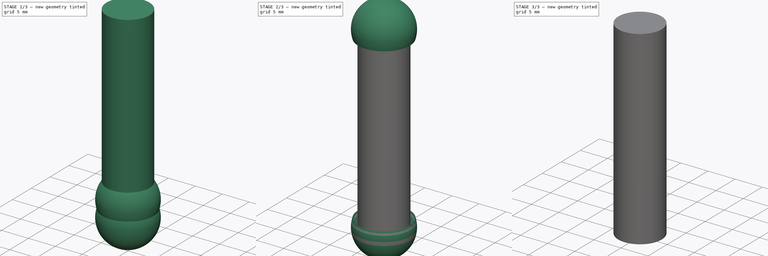
[diagram: build sequence overview — one tinted view per stage of 3, left to right]
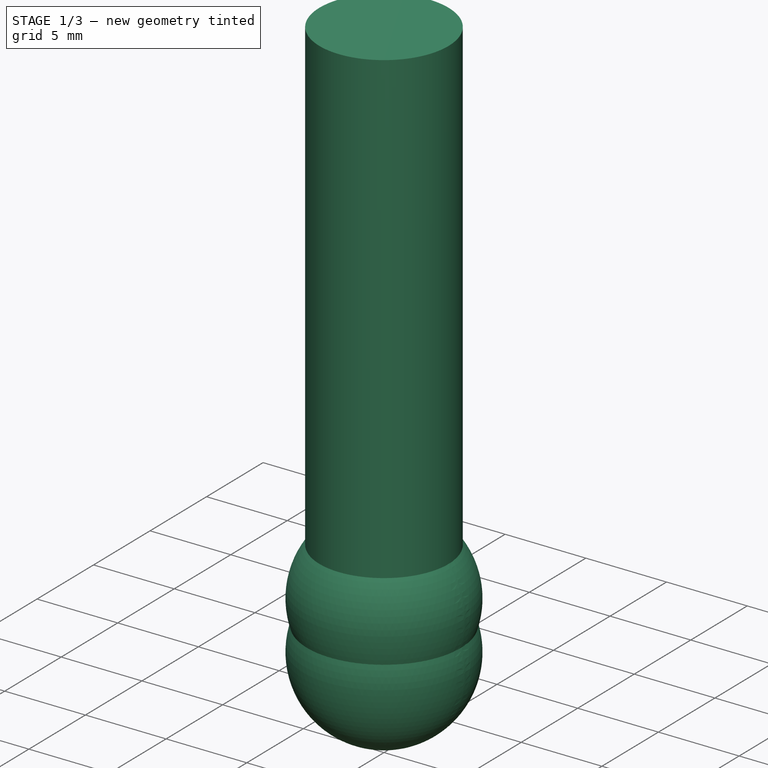
[diagram: stage 1 of 3 — iso view after this stage's code; geometry added in this stage tinted green]
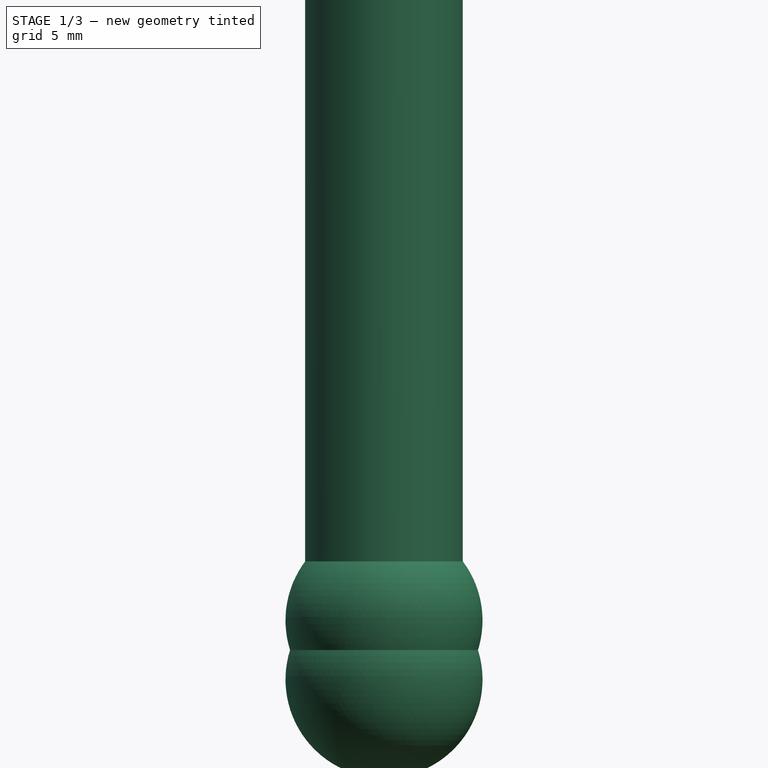
[diagram: stage 1 of 3 — front view after this stage's code; geometry added in this stage tinted green]
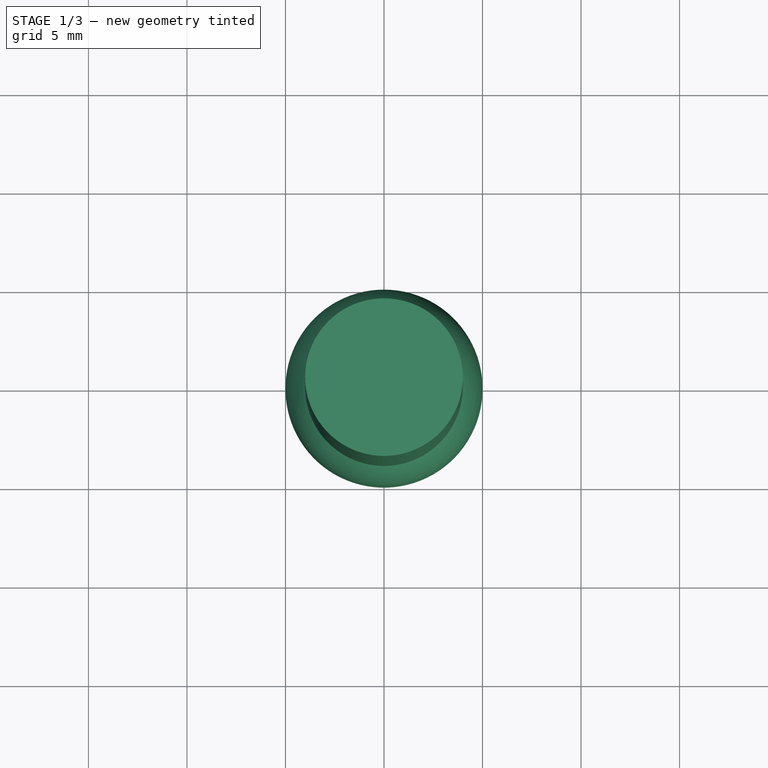
[diagram: stage 1 of 3 — top view after this stage's code; geometry added in this stage tinted green]
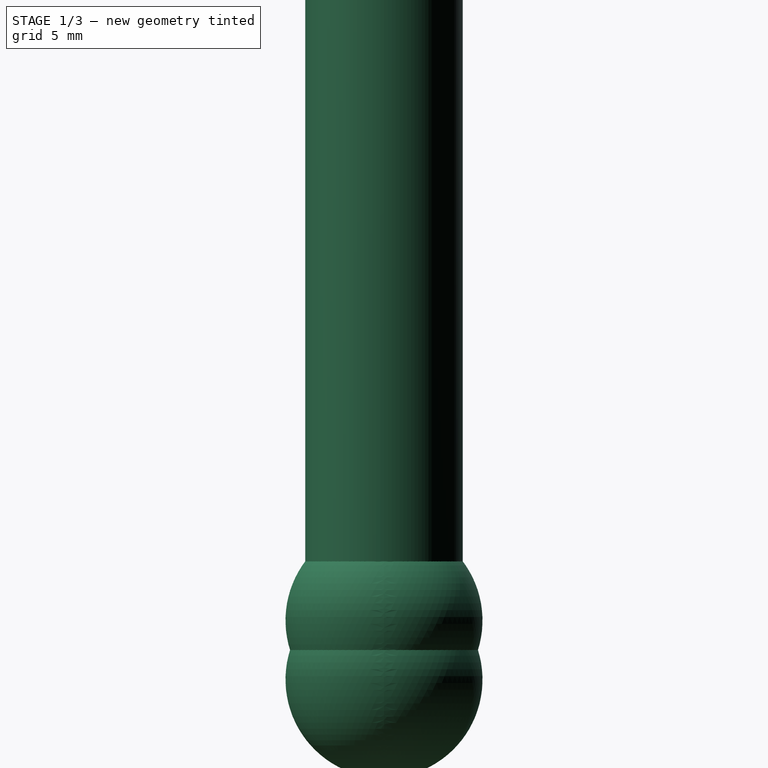
[diagram: stage 1 of 3 — right view after this stage's code; geometry added in this stage tinted green]
FCSTD DOCUMENT  (FreeCAD 1.1R20260325 (Git shallow))
Label: Dowel_8_x_35_mm
License: All rights reserved
LicenseURL: http://en.wikipedia.org/wiki/All_rights_reserved
objects: Part::Cut×4, Part::Sphere×2, App::LinkGroup×2, App::Point×2, PartDesign::Body×1, Sketcher::SketchObject×1, PartDesign::Pad×1, App::Part×1, Part::Cylinder×1
note: 13 computed .brp shape members not serialized (recipe doc carries the construction recipe); baked Part::Feature solids carry a one-line shape summary decoded from their .brp

FEATURE [Part::Sphere] Sphere
  Angle1 = -90
  Angle2 = 90
  Angle3 = 360
  AttacherType = Attacher::AttachEngine3D
  Radius = 5
FEATURE [Part::Sphere] Sphere001
  Angle1 = -90
  Angle2 = 90
  Angle3 = 360
  AttacherType = Attacher::AttachEngine3D
  Placement = pos=(0,0,3) rot=(0,0,1;0rad)
  Radius = 5
FEATURE [App::Part] Part  label="Part, Dowel"
  Group = -> [Body,Sphere,Sphere001,Cut001,Cut002,rpanelPad,Sketch,Cut,Cut003]
  Origin = -> Origin
FEATURE [Part::Cylinder] Cylinder  label="Dowel, Size, Pattern"
  Angle = 360
  AttacherType = Attacher::AttachEngine3D
  FirstAngle = 0
  Height = 35
  Radius = 4
  SecondAngle = 0
FEATURE [App::LinkGroup] LinkGroup  label="Dowel 8 x 35 mm, link this"
  ElementList = -> [Part,Cylinder]
  LinkMode = 0
FEATURE [App::LinkGroup] LinkGroup001  label="Dowel 8 x 35 mm, hide this"
  ElementList = -> [LinkGroup]
  LinkMode = 0
FEATURE [App::Point] Origin002  label="Origin"
  Role = Origin
FEATURE [App::Point] Origin003  label="Origin"
  Role = Origin
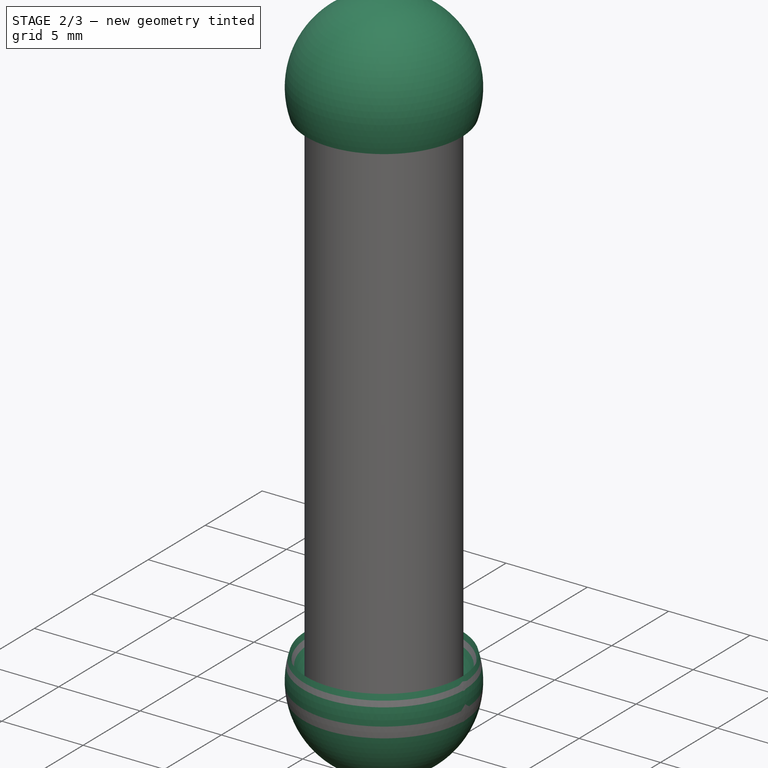
[diagram: stage 2 of 3 — iso view after this stage's code; geometry added in this stage tinted green]
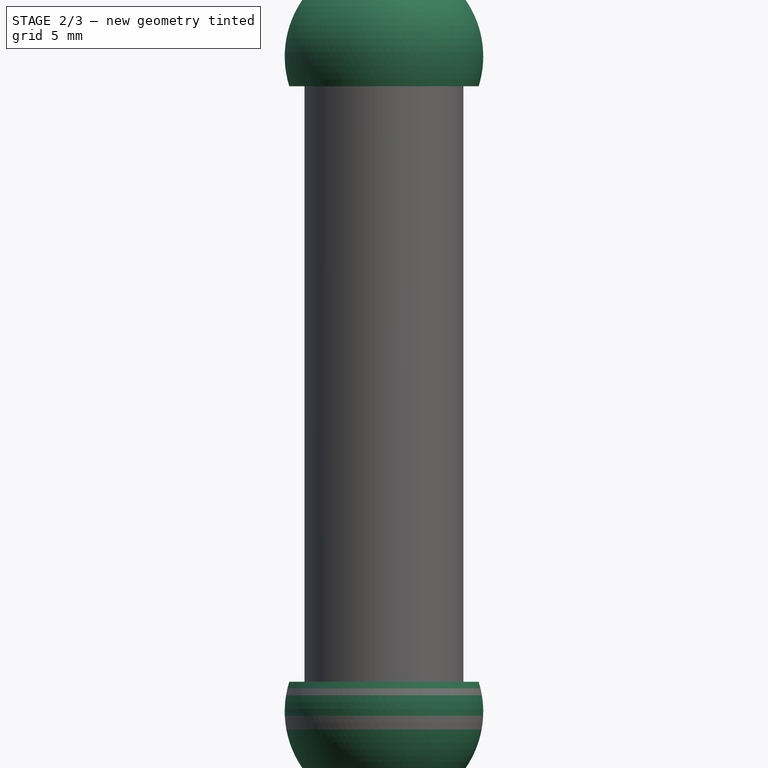
[diagram: stage 2 of 3 — front view after this stage's code; geometry added in this stage tinted green]
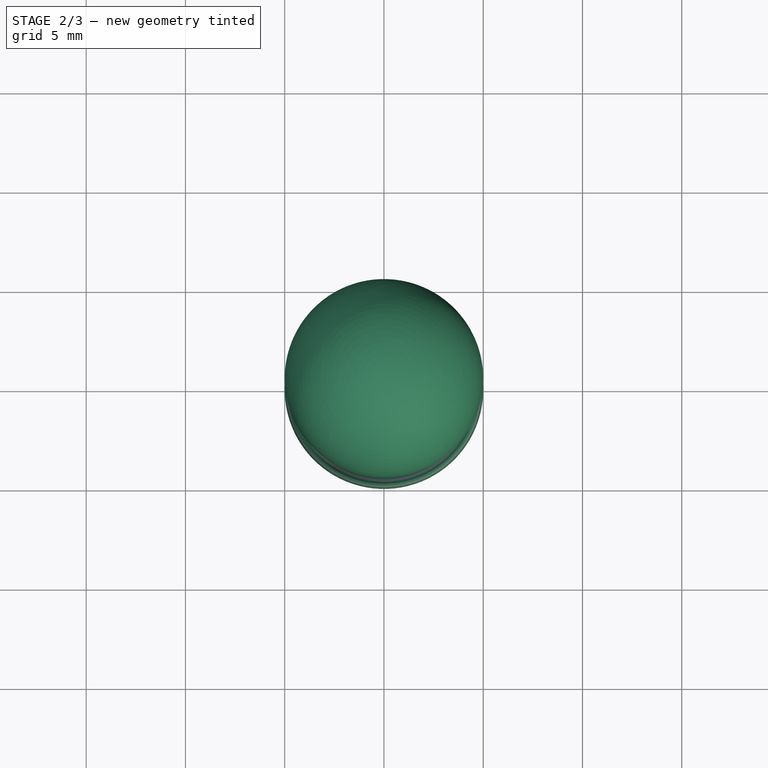
[diagram: stage 2 of 3 — top view after this stage's code; geometry added in this stage tinted green]
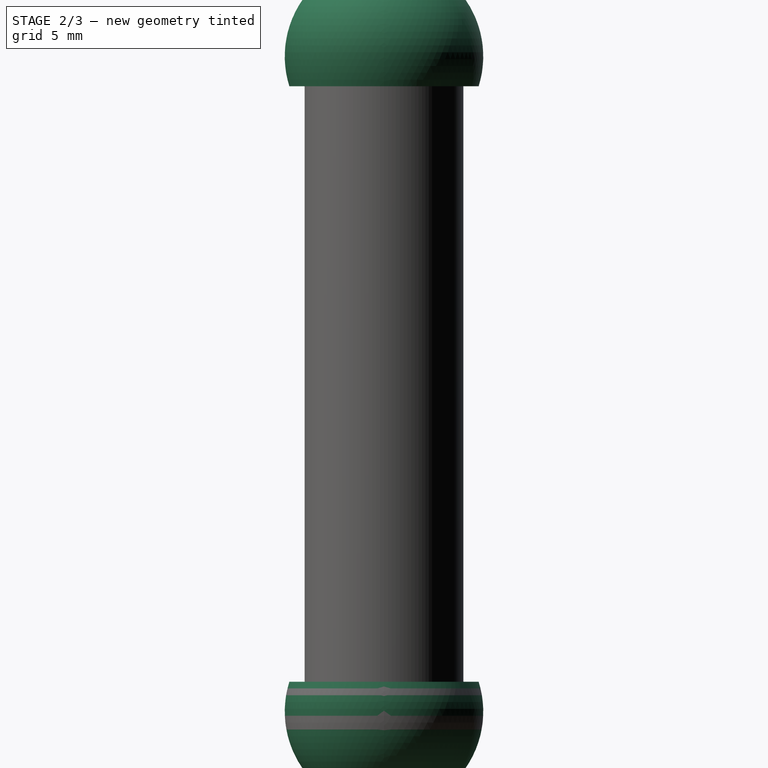
[diagram: stage 2 of 3 — right view after this stage's code; geometry added in this stage tinted green]
FEATURE [Part::Cut] Cut
  Base = -> Sphere
  Placement = pos=(0,0,1) rot=(0,0,1;0rad)
  Tool = -> Sphere001
FEATURE [Part::Cut] Cut002
  Base = -> Sphere
  Placement = pos=(0,0,34) rot=(1,0,0;3.14159rad)
  Tool = -> Sphere001
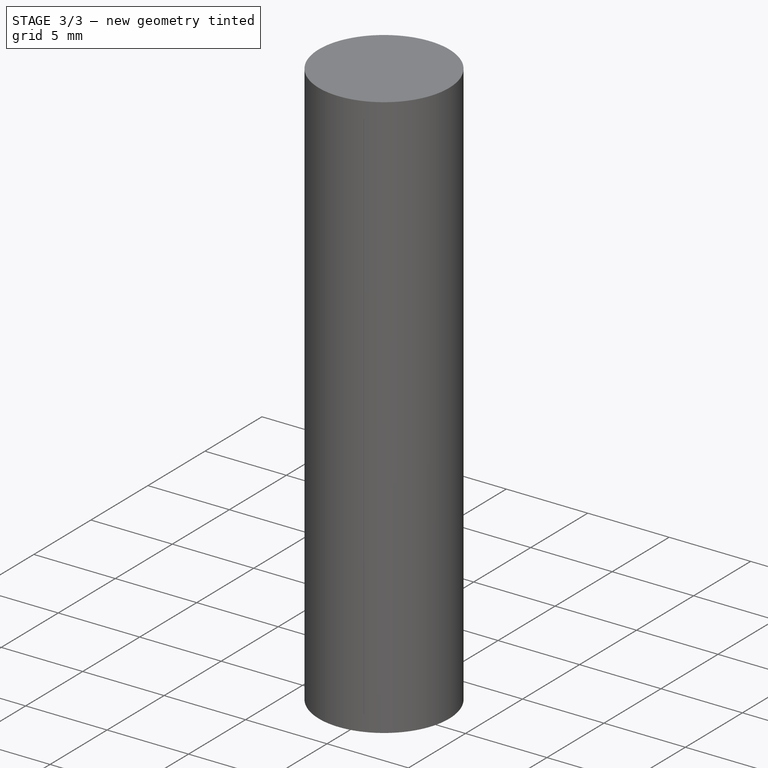
[diagram: stage 3 of 3 — iso view after this stage's code; geometry added in this stage tinted green]
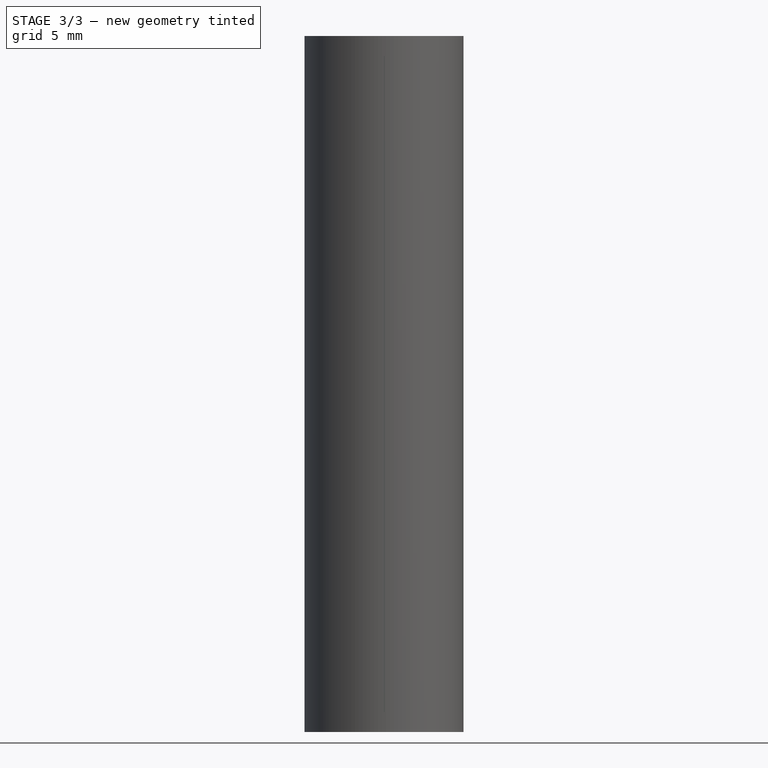
[diagram: stage 3 of 3 — front view after this stage's code; geometry added in this stage tinted green]
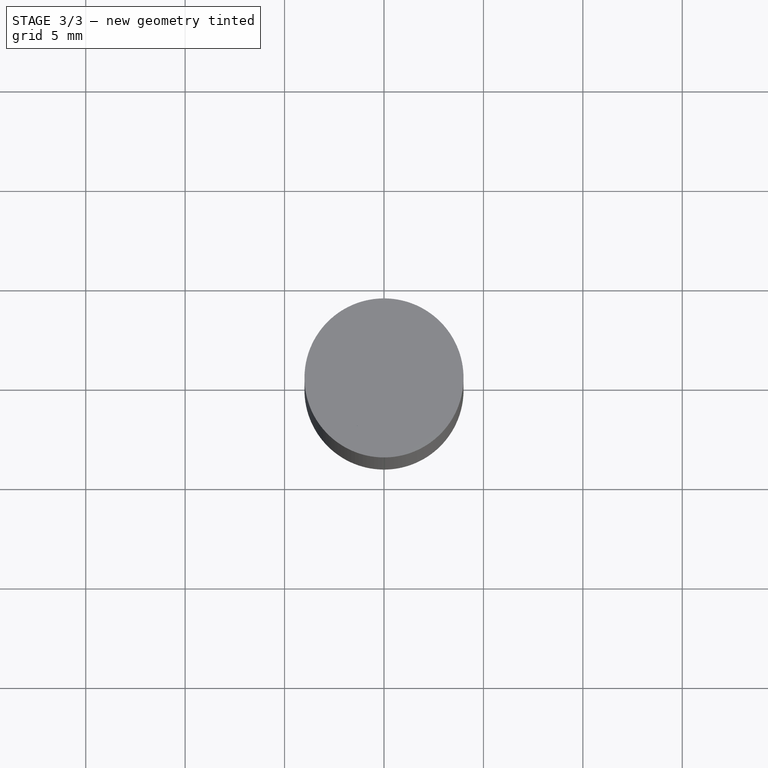
[diagram: stage 3 of 3 — top view after this stage's code; geometry added in this stage tinted green]
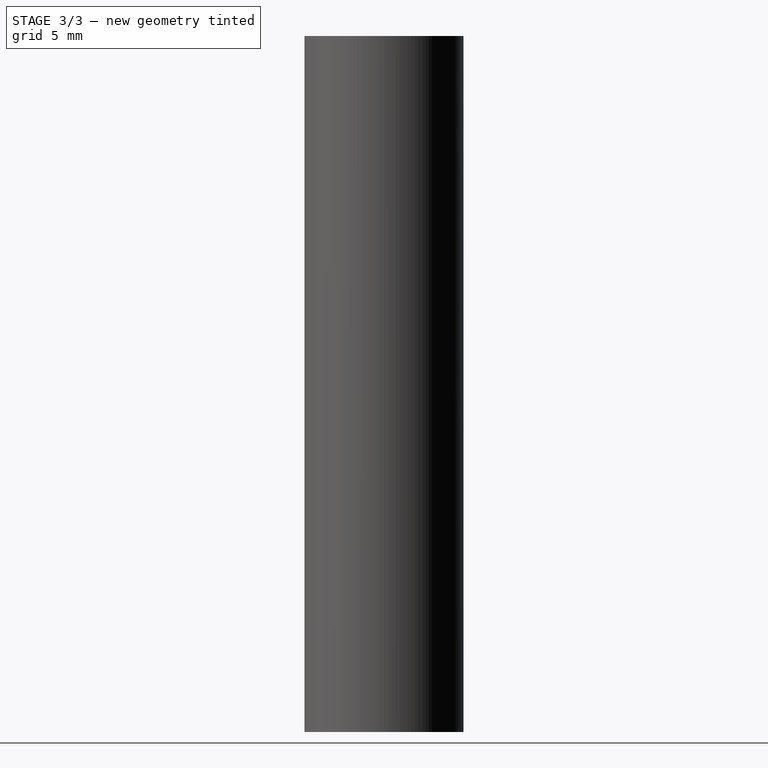
[diagram: stage 3 of 3 — right view after this stage's code; geometry added in this stage tinted green]
FEATURE [PartDesign::Body] Body  label="Body, Dowel"
  AllowCompound = true
  Origin = -> Origin001
FEATURE [Sketcher::SketchObject] Sketch  label="Pattern, Dowel"
  ArcFitTolerance = 0
  AttachmentSupport = -> [XY_Plane001]
  ExternalTypes = [0]
  FullyConstrained = false
  MakeInternals = false
  MapMode = 5
  _ExternalGeoVersion = 0
  sketch-geometry (39):
    g0: LineSegment StartX=-1.49873 StartY=3.70861 StartZ=0 EndX=-0.57693 EndY=2.6888 EndZ=0
    g1: LineSegment StartX=-0.57693 StartY=2.6888 StartZ=0 EndX=-0.154647 EndY=3.99701 EndZ=0
    g2: LineSegment StartX=-0.154647 StartY=3.99701 StartZ=0 EndX=0.367453 EndY=2.72534 EndZ=0
    g3: LineSegment StartX=0.367453 StartY=2.72534 StartZ=0 EndX=1.2077 EndY=3.81333 EndZ=0
    g4: LineSegment StartX=1.2077 StartY=3.81333 StartZ=0 EndX=1.26844 EndY=2.43999 EndZ=0
    g5: LineSegment StartX=1.26844 StartY=2.43999 StartZ=0 EndX=2.42741 EndY=3.17926 EndZ=0
    g6: LineSegment StartX=2.63269 StartY=3.01147 StartZ=0 EndX=2.13881 EndY=1.72858 EndZ=0
    g7: LineSegment StartX=2.13881 StartY=1.72858 StartZ=0 EndX=3.49677 EndY=1.94232 EndZ=0
    g8: LineSegment StartX=3.49677 StartY=1.94232 StartZ=0 EndX=2.59773 EndY=0.902385 EndZ=0
    g9: LineSegment StartX=2.59773 StartY=0.902385 StartZ=0 EndX=3.94786 EndY=0.643758 EndZ=0
    g10: LineSegment StartX=3.94786 StartY=0.643758 StartZ=0 EndX=2.74983 EndY=-0.030384 EndZ=0
    g11: LineSegment StartX=2.74983 StartY=-0.030384 StartZ=0 EndX=3.93267 EndY=-0.730833 EndZ=0
    g12: LineSegment StartX=3.93267 StartY=-0.730833 StartZ=0 EndX=2.57716 EndY=-0.959565 EndZ=0
    g13: LineSegment StartX=2.57716 StartY=-0.959565 StartZ=0 EndX=3.453 EndY=-2.01911 EndZ=0
    g14: LineSegment StartX=3.453 StartY=-2.01911 StartZ=0 EndX=2.1001 EndY=-1.77541 EndZ=0
    g15: LineSegment StartX=2.1001 StartY=-1.77541 StartZ=0 EndX=2.5655 EndY=-3.06891 EndZ=0
    g16: LineSegment StartX=2.5655 StartY=-3.06891 StartZ=0 EndX=1.375 EndY=-2.38157 EndZ=0
    g17: LineSegment StartX=1.375 StartY=-2.38157 StartZ=0 EndX=1.375 EndY=-3.75624 EndZ=0
    g18: LineSegment StartX=1.375 StartY=-3.75624 StartZ=0 EndX=0.487504 EndY=-2.70644 EndZ=0
    g19: LineSegment StartX=0.487504 StartY=-2.70644 StartZ=0 EndX=0.0220978 EndY=-3.99994 EndZ=0
    g20: LineSegment StartX=0.0220978 StartY=-3.99994 StartZ=0 EndX=-0.457571 EndY=-2.71167 EndZ=0
    g21: LineSegment StartX=-0.457571 StartY=-2.71167 StartZ=0 EndX=-1.33341 EndY=-3.77121 EndZ=0
    g22: LineSegment StartX=-1.33341 StartY=-3.77121 StartZ=0 EndX=-1.3486 EndY=-2.39662 EndZ=0
    g23: LineSegment StartX=-1.3486 StartY=-2.39662 StartZ=0 EndX=-2.53144 EndY=-3.09707 EndZ=0
    g24: LineSegment StartX=-2.53144 StartY=-3.09707 StartZ=0 EndX=-2.08035 EndY=-1.79851 EndZ=0
    g25: LineSegment StartX=-2.08035 StartY=-1.79851 StartZ=0 EndX=-3.43048 EndY=-2.05713 EndZ=0
    g26: LineSegment StartX=-3.43048 StartY=-2.05713 StartZ=0 EndX=-2.5664 EndY=-0.98798 EndZ=0
    g27: LineSegment StartX=-2.5664 StartY=-0.98798 StartZ=0 EndX=-3.92435 EndY=-0.774239 EndZ=0
    g28: LineSegment StartX=-3.92435 StartY=-0.774239 StartZ=0 EndX=-2.74933 EndY=-0.0607643 EndZ=0
    g29: LineSegment StartX=-2.74933 StartY=-0.0607643 StartZ=0 EndX=-3.95473 EndY=0.6001 EndZ=0
    g30: LineSegment StartX=-3.95473 StartY=0.6001 StartZ=0 EndX=-2.60754 EndY=0.873628 EndZ=0
    g31: LineSegment StartX=-2.60754 StartY=0.873628 StartZ=0 EndX=-3.51802 EndY=1.90356 EndZ=0
    g32: LineSegment StartX=-3.51802 StartY=1.90356 StartZ=0 EndX=-2.15778 EndY=1.70484 EndZ=0
    g33: LineSegment StartX=-2.15778 StartY=1.70484 StartZ=0 EndX=-2.6658 EndY=2.9822 EndZ=0
    g34: LineSegment StartX=-2.6658 StartY=2.9822 StartZ=0 EndX=-1.45317 EndY=2.33469 EndZ=0
    g35: LineSegment StartX=-1.45317 StartY=2.33469 StartZ=0 EndX=-1.49873 EndY=3.70861 EndZ=0
    g36: Circle [constr] CenterX=0 CenterY=0 CenterZ=0 NormalX=0 NormalY=0 NormalZ=1 AngleXU=0 Radius=2.75
    g37: Circle [constr] CenterX=0 CenterY=0 CenterZ=0 NormalX=0 NormalY=0 NormalZ=1 AngleXU=0 Radius=4
    g38: ArcOfCircle CenterX=-3.821e-13 CenterY=-4.58e-13 CenterZ=0 NormalX=0 NormalY=0 NormalZ=1 AngleXU=0 Radius=4 StartAngle=0.852408 EndAngle=0.918702
  constraints (115):
    c: Coincident(g0,g1)
    c: Coincident(g1,g2)
    c: Coincident(g2,g3)
    c: Coincident(g3,g4)
    c: Coincident(g4,g5)
    c: Coincident(g6,g7)
    c: Coincident(g7,g8)
    c: Coincident(g8,g9)
    c: Coincident(g9,g10)
    c: Coincident(g10,g11)
    c: Coincident(g11,g12)
    c: Coincident(g12,g13)
    c: Coincident(g13,g14)
    c: Coincident(g14,g15)
    c: Coincident(g15,g16)
    c: Coincident(g16,g17)
    c: Vertical(g17)
    c: Coincident(g17,g18)
    c: Coincident(g18,g19)
    c: Coincident(g19,g20)
    c: Coincident(g20,g21)
    c: Coincident(g22,g23)
    c: Coincident(g23,g24)
    c: Coincident(g24,g25)
    c: Coincident(g25,g26)
    c: Coincident(g26,g27)
    c: Coincident(g27,g28)
    c: Coincident(g28,g29)
    c: Coincident(g29,g30)
    c: Coincident(g30,g31)
    c: Coincident(g31,g32)
    c: Coincident(g32,g33)
    c: Coincident(g33,g34)
    c: Coincident(g34,g35)
    c: Coincident(g35,g0)
    c: Equal(g0,g1)
    c: Equal(g1,g2)
    c: Equal(g2,g3)
    c: Equal(g3,g4)
    c: Equal(g4,g5)
    c: Equal(g6,g7)
    c: Equal(g7,g8)
    c: Equal(g8,g9)
    c: Equal(g9,g10)
    c: Equal(g10,g11)
    c: Equal(g11,g12)
    c: Equal(g12,g13)
    c: Equal(g13,g14)
    c: Equal(g14,g15)
    c: Equal(g15,g16)
    c: Equal(g16,g17)
    c: Equal(g17,g18)
    c: Equal(g18,g19)
    c: Equal(g19,g20)
    c: Equal(g20,g21)
    c: Equal(g22,g23)
    c: Equal(g23,g24)
    c: Equal(g24,g25)
    c: Equal(g25,g26)
    c: Equal(g26,g27)
    c: Equal(g27,g28)
    c: Equal(g28,g29)
    c: Equal(g29,g30)
    c: Equal(g30,g31)
    c: Equal(g31,g32)
    c: Equal(g32,g33)
    c: Equal(g33,g34)
    c: Equal(g34,g35)
    c: Angle(g23,g22) = 1.0472
    c: Angle(g25,g24) = 1.0472
    c: Angle(g27,g26) = 1.0472
    c: Angle(g29,g28) = 1.0472
    c: Angle(g31,g30) = 1.0472
    c: Angle(g33,g32) = 1.0472
    c: Angle(g35,g34) = 1.0472
    c: Angle(g1,g0) = 1.0472
    c: Angle(g3,g2) = 1.0472
    c: Angle(g5,g4) = 1.0472
    c: Angle(g7,g6) = 1.0472
    c: Angle(g9,g8) = 1.0472
    c: Angle(g11,g10) = 1.0472
    c: Angle(g13,g12) = 1.0472
    c: Angle(g15,g14) = 1.0472
    c: Angle(g17,g16) = 1.0472
    c: Angle(g19,g18) = 1.0472
    c: Angle(g21,g20) = 1.0472
    c: Coincident(g22,g21)
    c: Coincident(g36,g-1)
    c: PointOnObject(g34,g36)
    c: Coincident(g37,g36)
    c: PointOnObject(g6,g36)
    c: PointOnObject(g12,g36)
    c: PointOnObject(g10,g36)
    c: PointOnObject(g8,g36)
    c: PointOnObject(g14,g36)
    c: PointOnObject(g16,g36)
    c: PointOnObject(g18,g36)
    c: PointOnObject(g20,g36)
    c: PointOnObject(g22,g36)
    c: PointOnObject(g24,g36)
    c: PointOnObject(g26,g36)
    c: PointOnObject(g28,g36)
    c: PointOnObject(g30,g36)
    c: PointOnObject(g32,g36)
    c: PointOnObject(g0,g36)
    c: PointOnObject(g4,g36)
    c: PointOnObject(g1,g37)
    c: PointOnObject(g3,g37)
    c: PointOnObject(g5,g37)
    c: PointOnObject(g6,g37)
    c: PointOnObject(g7,g37)
    c: Diameter(g37) = 8  'Diameter'
    c: Diameter(g36) = 5.5
    c: Coincident(g38,g5)
    c: Coincident(g38,g6)
FEATURE [PartDesign::Pad] rpanelPad  label="Dowel"
  Direction = (0,0,1)
  Length = 35
  Length2 = 10
  Profile = -> Sketch
  ReferenceAxis = -> Sketch [N_Axis]
  SideType = 0
  Suppressed = false
  Type = 0
  Type2 = 0
FEATURE [Part::Cut] Cut001
  Base = -> rpanelPad
  Tool = -> Cut
FEATURE [Part::Cut] Cut003  label="Dowel_8_x_35_mm"
  Base = -> Cut001
  Tool = -> Cut002
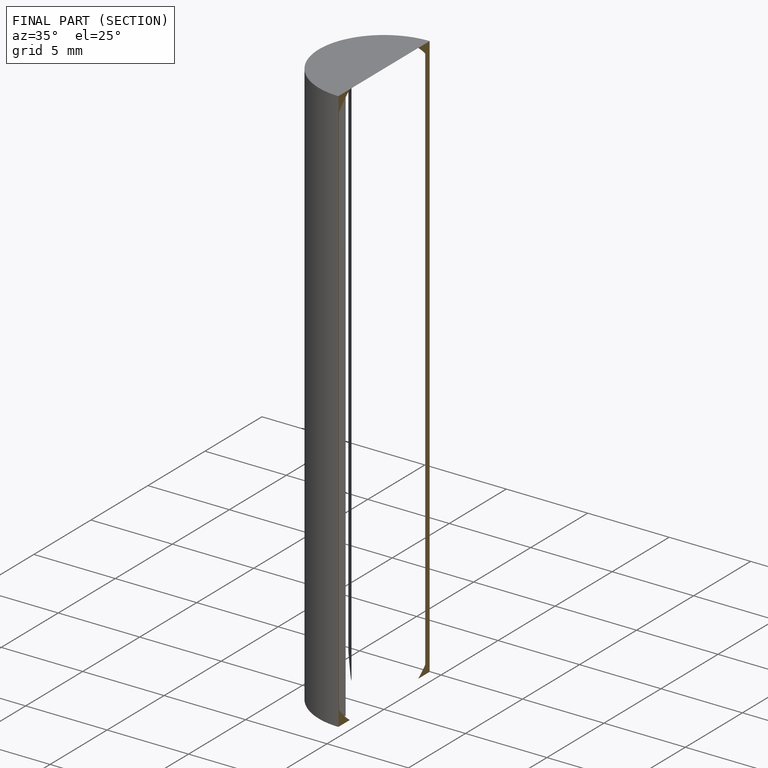
[diagram: finished part — half-section view (interior)]
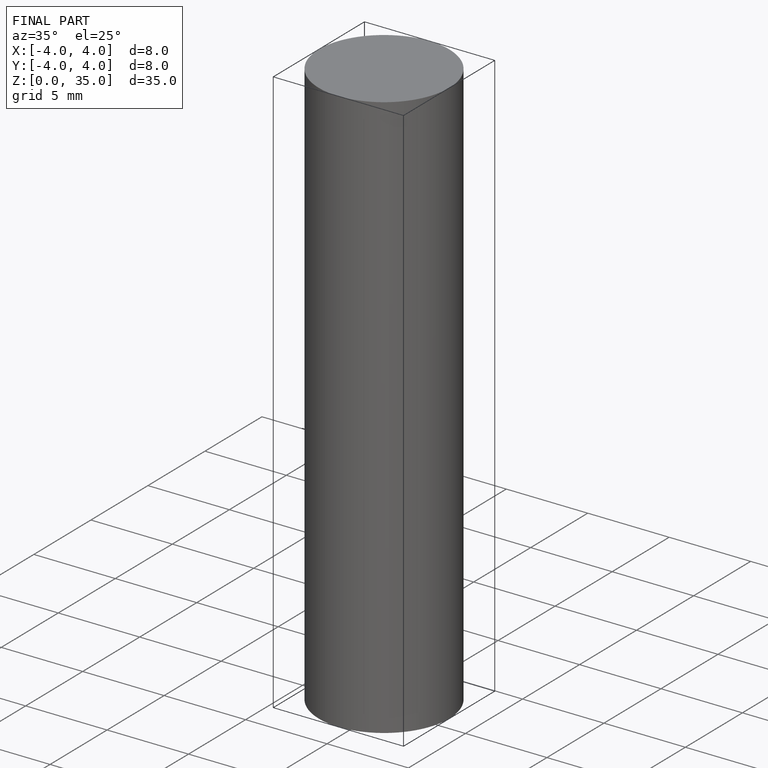
[diagram: finished part — iso view with bounding-box wireframe]
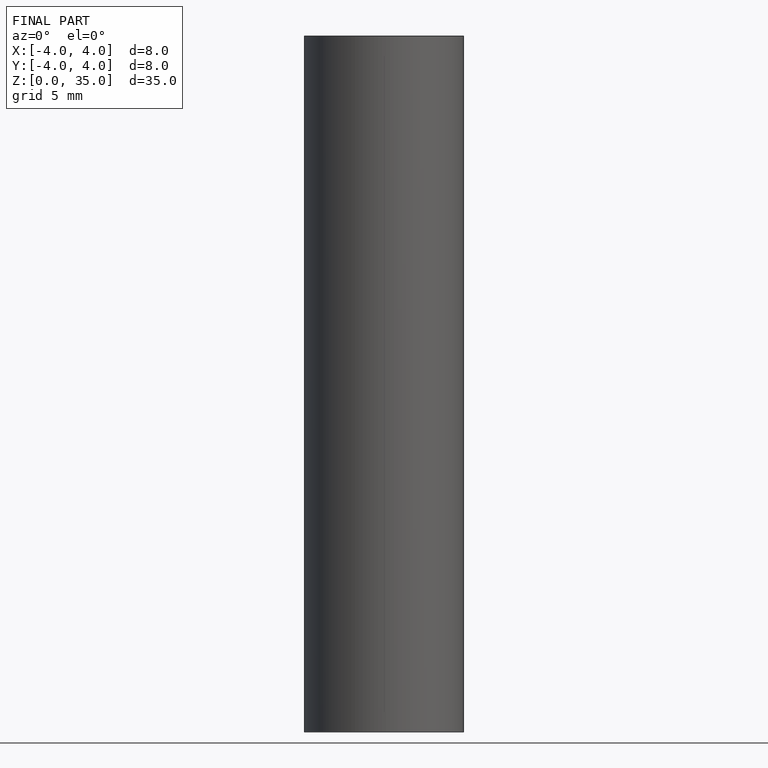
[diagram: finished part — front view with bounding-box wireframe]
